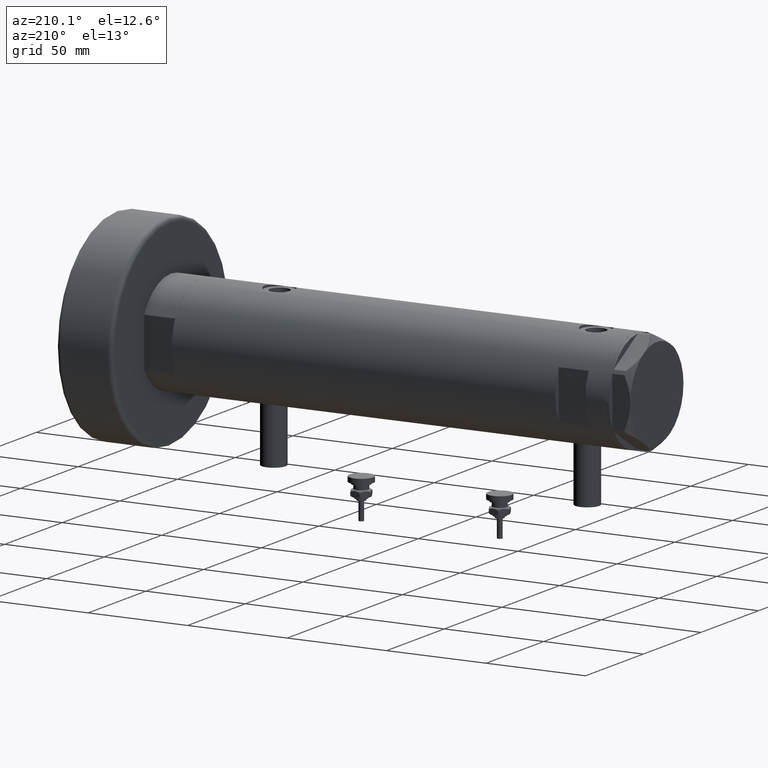
[diagram: clean part render]
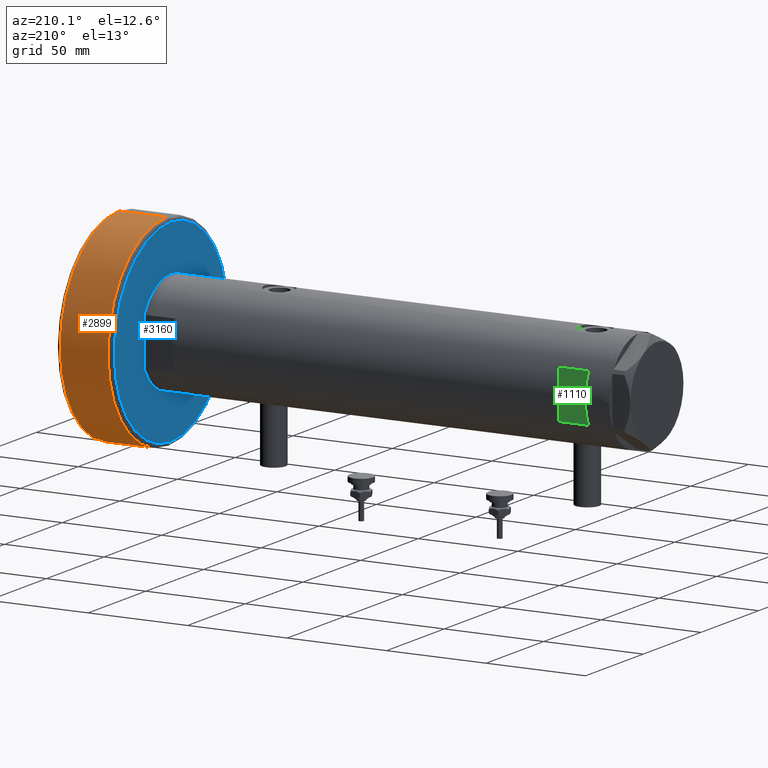
[diagram: same view with three faces highlighted in distinct colors, each labeled with its STEP entity id]
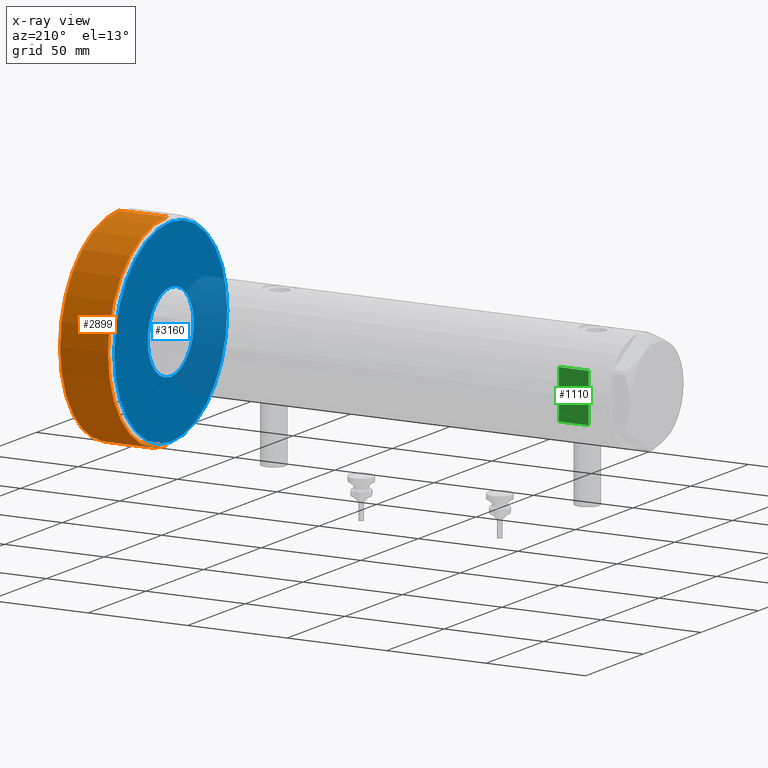
[diagram: x-ray of the same camera — body ghosted, the three highlighted faces saturated]
A machine part, auxiliary view with three faces highlighted in distinct colors.
The next image is the same camera in x-ray (body ghosted, the three faces saturated) — at least one of them is partly hidden behind the body in this view.
Their STEP definitions:

[orange] entity #2899 — the highlighted cylindrical surface (partial cylindrical patch) has radius 51 mm, axis along (-1, -0, 0).
#100 = DIRECTION ( 'NONE',  ( -0.000000000000000000, -0.000000000000000000, -1.000000000000000000 ) ) ;
#355 = DIRECTION ( 'NONE',  ( 1.000000000000000000, 0.000000000000000000, 0.000000000000000000 ) ) ;
#367 = VERTEX_POINT ( 'NONE', #2523 ) ;
#486 = ORIENTED_EDGE ( 'NONE', *, *, #1932, .T. ) ;
#859 = AXIS2_PLACEMENT_3D ( 'NONE', #1368, #4504, #870 ) ;
#870 = DIRECTION ( 'NONE',  ( 1.000000000000000000, 0.000000000000000000, 0.000000000000000000 ) ) ;
#1113 = CARTESIAN_POINT ( 'NONE',  ( 50.99999999999999289, 6.245698675651499656E-15, 1.999999999999998224 ) ) ;
#1224 = CARTESIAN_POINT ( 'NONE',  ( 0.000000000000000000, 0.000000000000000000, 28.00000000000000000 ) ) ;
#1324 = DIRECTION ( 'NONE',  ( 0.000000000000000000, 0.000000000000000000, 1.000000000000000000 ) ) ;
#1368 = CARTESIAN_POINT ( 'NONE',  ( 0.000000000000000000, 0.000000000000000000, 26.00000000000000355 ) ) ;
#1637 = LINE ( 'NONE', #2641, #2387 ) ;
#1641 = CARTESIAN_POINT ( 'NONE',  ( 50.99999999999999289, 6.245698675651499656E-15, 28.00000000000000000 ) ) ;
#1764 = ORIENTED_EDGE ( 'NONE', *, *, #2409, .T. ) ;
#1932 = EDGE_CURVE ( 'NONE', #6383, #5592, #5745, .T. ) ;
#2089 = CARTESIAN_POINT ( 'NONE',  ( -50.99999999999999289, 0.000000000000000000, 1.999999999999998224 ) ) ;
#2293 = CARTESIAN_POINT ( 'NONE',  ( 0.000000000000000000, 0.000000000000000000, 1.999999999999998224 ) ) ;
#2348 = CYLINDRICAL_SURFACE ( 'NONE', #3030, 50.99999999999999289 ) ;
#2364 = AXIS2_PLACEMENT_3D ( 'NONE', #2293, #1324, #355 ) ;
#2387 = VECTOR ( 'NONE', #6307, 1000.000000000000000 ) ;
#2409 = EDGE_CURVE ( 'NONE', #367, #6383, #6347, .T. ) ;
#2523 = CARTESIAN_POINT ( 'NONE',  ( 50.99999999999999289, 6.245698675651499656E-15, 26.00000000000000355 ) ) ;
#2641 = CARTESIAN_POINT ( 'NONE',  ( -50.99999999999999289, 0.000000000000000000, 28.00000000000000000 ) ) ;
#2899 = ADVANCED_FACE ( 'NONE', ( #5961 ), #2348, .T. ) ;
#3030 = AXIS2_PLACEMENT_3D ( 'NONE', #1224, #5901, #3313 ) ;
#3313 = DIRECTION ( 'NONE',  ( -1.000000000000000000, 0.000000000000000000, 0.000000000000000000 ) ) ;
#4004 = CIRCLE ( 'NONE', #859, 50.99999999999999289 ) ;
#4095 = CARTESIAN_POINT ( 'NONE',  ( -50.99999999999999289, 0.000000000000000000, 26.00000000000000355 ) ) ;
#4430 = EDGE_CURVE ( 'NONE', #5666, #5592, #1637, .T. ) ;
#4504 = DIRECTION ( 'NONE',  ( -0.000000000000000000, -0.000000000000000000, -1.000000000000000000 ) ) ;
#4756 = VECTOR ( 'NONE', #100, 1000.000000000000000 ) ;
#4905 = ORIENTED_EDGE ( 'NONE', *, *, #5445, .T. ) ;
#5006 = ORIENTED_EDGE ( 'NONE', *, *, #4430, .F. ) ;
#5445 = EDGE_CURVE ( 'NONE', #5666, #367, #4004, .T. ) ;
#5592 = VERTEX_POINT ( 'NONE', #2089 ) ;
#5666 = VERTEX_POINT ( 'NONE', #4095 ) ;
#5745 = CIRCLE ( 'NONE', #2364, 50.99999999999999289 ) ;
#5901 = DIRECTION ( 'NONE',  ( -0.000000000000000000, -0.000000000000000000, -1.000000000000000000 ) ) ;
#5961 = FACE_OUTER_BOUND ( 'NONE', #6652, .T. ) ;
#6307 = DIRECTION ( 'NONE',  ( -0.000000000000000000, -0.000000000000000000, -1.000000000000000000 ) ) ;
#6347 = LINE ( 'NONE', #1641, #4756 ) ;
#6383 = VERTEX_POINT ( 'NONE', #1113 ) ;
#6652 = EDGE_LOOP ( 'NONE', ( #4905, #1764, #486, #5006 ) ) ;

[blue] entity #3160 — the highlighted planar face has unit normal (1, 0, -0).
#16 = AXIS2_PLACEMENT_3D ( 'NONE', #5433, #4922, #3322 ) ;
#174 = CARTESIAN_POINT ( 'NONE',  ( -48.99999999999998579, 6.123233995736764507E-15, 0.000000000000000000 ) ) ;
#337 = CIRCLE ( 'NONE', #6626, 20.00000000000000000 ) ;
#705 = CARTESIAN_POINT ( 'NONE',  ( -20.00000000000000000, 2.449293598294706513E-15, 0.000000000000000000 ) ) ;
#803 = ORIENTED_EDGE ( 'NONE', *, *, #4135, .T. ) ;
#1177 = AXIS2_PLACEMENT_3D ( 'NONE', #4928, #5538, #1406 ) ;
#1406 = DIRECTION ( 'NONE',  ( 1.000000000000000000, 0.000000000000000000, 0.000000000000000000 ) ) ;
#1414 = EDGE_LOOP ( 'NONE', ( #4632, #803 ) ) ;
#1477 = ORIENTED_EDGE ( 'NONE', *, *, #6615, .T. ) ;
#1625 = FACE_BOUND ( 'NONE', #4547, .T. ) ;
#1656 = CARTESIAN_POINT ( 'NONE',  ( 0.000000000000000000, 0.000000000000000000, 0.000000000000000000 ) ) ;
#1701 = CARTESIAN_POINT ( 'NONE',  ( 0.000000000000000000, 0.000000000000000000, 0.000000000000000000 ) ) ;
#1966 = CARTESIAN_POINT ( 'NONE',  ( 20.00000000000000000, 0.000000000000000000, 0.000000000000000000 ) ) ;
#2274 = CIRCLE ( 'NONE', #16, 48.99999999999998579 ) ;
#2577 = EDGE_CURVE ( 'NONE', #4019, #6539, #6066, .T. ) ;
#2661 = FACE_OUTER_BOUND ( 'NONE', #1414, .T. ) ;
#3095 = CARTESIAN_POINT ( 'NONE',  ( 48.99999999999998579, 0.000000000000000000, 0.000000000000000000 ) ) ;
#3160 = ADVANCED_FACE ( 'NONE', ( #2661, #1625 ), #3709, .F. ) ;
#3200 = DIRECTION ( 'NONE',  ( 0.000000000000000000, 0.000000000000000000, 1.000000000000000000 ) ) ;
#3273 = ORIENTED_EDGE ( 'NONE', *, *, #5399, .T. ) ;
#3322 = DIRECTION ( 'NONE',  ( 1.000000000000000000, 0.000000000000000000, 0.000000000000000000 ) ) ;
#3709 = PLANE ( 'NONE',  #5096 ) ;
#3765 = DIRECTION ( 'NONE',  ( 1.000000000000000000, 0.000000000000000000, 0.000000000000000000 ) ) ;
#3785 = DIRECTION ( 'NONE',  ( -0.000000000000000000, -0.000000000000000000, -1.000000000000000000 ) ) ;
#4019 = VERTEX_POINT ( 'NONE', #3095 ) ;
#4110 = CIRCLE ( 'NONE', #1177, 20.00000000000000000 ) ;
#4135 = EDGE_CURVE ( 'NONE', #6539, #4019, #2274, .T. ) ;
#4252 = DIRECTION ( 'NONE',  ( 1.000000000000000000, 0.000000000000000000, -0.000000000000000000 ) ) ;
#4547 = EDGE_LOOP ( 'NONE', ( #1477, #3273 ) ) ;
#4632 = ORIENTED_EDGE ( 'NONE', *, *, #2577, .T. ) ;
#4767 = DIRECTION ( 'NONE',  ( 0.000000000000000000, 0.000000000000000000, 1.000000000000000000 ) ) ;
#4922 = DIRECTION ( 'NONE',  ( -0.000000000000000000, -0.000000000000000000, -1.000000000000000000 ) ) ;
#4928 = CARTESIAN_POINT ( 'NONE',  ( 0.000000000000000000, 0.000000000000000000, 0.000000000000000000 ) ) ;
#5096 = AXIS2_PLACEMENT_3D ( 'NONE', #5795, #4767, #4252 ) ;
#5324 = VERTEX_POINT ( 'NONE', #705 ) ;
#5399 = EDGE_CURVE ( 'NONE', #5324, #6243, #4110, .T. ) ;
#5433 = CARTESIAN_POINT ( 'NONE',  ( 0.000000000000000000, 0.000000000000000000, 0.000000000000000000 ) ) ;
#5538 = DIRECTION ( 'NONE',  ( 0.000000000000000000, 0.000000000000000000, 1.000000000000000000 ) ) ;
#5795 = CARTESIAN_POINT ( 'NONE',  ( 0.000000000000000000, 0.000000000000000000, 0.000000000000000000 ) ) ;
#5851 = AXIS2_PLACEMENT_3D ( 'NONE', #1701, #3785, #5877 ) ;
#5877 = DIRECTION ( 'NONE',  ( 1.000000000000000000, 0.000000000000000000, 0.000000000000000000 ) ) ;
#6066 = CIRCLE ( 'NONE', #5851, 48.99999999999998579 ) ;
#6243 = VERTEX_POINT ( 'NONE', #1966 ) ;
#6539 = VERTEX_POINT ( 'NONE', #174 ) ;
#6615 = EDGE_CURVE ( 'NONE', #6243, #5324, #337, .T. ) ;
#6626 = AXIS2_PLACEMENT_3D ( 'NONE', #1656, #3200, #3765 ) ;

[green] entity #1110 — the highlighted planar face has unit normal (0, -1, -0).
#48 = EDGE_CURVE ( 'NONE', #1385, #3265, #1090, .T. ) ;
#67 = EDGE_LOOP ( 'NONE', ( #6473, #5167, #244, #2803 ) ) ;
#193 = VECTOR ( 'NONE', #6068, 1000.000000000000000 ) ;
#244 = ORIENTED_EDGE ( 'NONE', *, *, #1143, .T. ) ;
#565 = CARTESIAN_POINT ( 'NONE',  ( -26.00000000000000355, 23.00000000000000355, 98.95000000000001705 ) ) ;
#954 = VERTEX_POINT ( 'NONE', #2960 ) ;
#1090 = LINE ( 'NONE', #3679, #3427 ) ;
#1110 = ADVANCED_FACE ( 'NONE', ( #1648 ), #5240, .F. ) ;
#1143 = EDGE_CURVE ( 'NONE', #954, #3822, #3397, .T. ) ;
#1257 = CARTESIAN_POINT ( 'NONE',  ( -26.00000000000000355, 23.00000000000000355, 83.95000000000003126 ) ) ;
#1385 = VERTEX_POINT ( 'NONE', #4672 ) ;
#1485 = VECTOR ( 'NONE', #5247, 1000.000000000000000 ) ;
#1581 = AXIS2_PLACEMENT_3D ( 'NONE', #565, #5300, #2650 ) ;
#1648 = FACE_OUTER_BOUND ( 'NONE', #67, .T. ) ;
#1891 = EDGE_CURVE ( 'NONE', #954, #3265, #5934, .T. ) ;
#1895 = CARTESIAN_POINT ( 'NONE',  ( -12.12435565298214080, 23.00000000000000355, 98.95000000000001705 ) ) ;
#2067 = EDGE_CURVE ( 'NONE', #3822, #1385, #3173, .T. ) ;
#2650 = DIRECTION ( 'NONE',  ( 0.000000000000000000, 0.000000000000000000, -1.000000000000000000 ) ) ;
#2794 = VECTOR ( 'NONE', #3362, 1000.000000000000000 ) ;
#2803 = ORIENTED_EDGE ( 'NONE', *, *, #2067, .T. ) ;
#2818 = CARTESIAN_POINT ( 'NONE',  ( -12.12435565298214080, 23.00000000000000355, -108.9500000000000028 ) ) ;
#2960 = CARTESIAN_POINT ( 'NONE',  ( -12.12435565298214080, 23.00000000000000355, 83.95000000000003126 ) ) ;
#3173 = LINE ( 'NONE', #4729, #1485 ) ;
#3265 = VERTEX_POINT ( 'NONE', #3802 ) ;
#3362 = DIRECTION ( 'NONE',  ( 0.000000000000000000, 0.000000000000000000, 1.000000000000000000 ) ) ;
#3397 = LINE ( 'NONE', #2818, #2794 ) ;
#3427 = VECTOR ( 'NONE', #4316, 1000.000000000000000 ) ;
#3679 = CARTESIAN_POINT ( 'NONE',  ( 12.12435565298214080, 23.00000000000000355, -108.9500000000000028 ) ) ;
#3802 = CARTESIAN_POINT ( 'NONE',  ( 12.12435565298213724, 23.00000000000000355, 83.95000000000003126 ) ) ;
#3822 = VERTEX_POINT ( 'NONE', #1895 ) ;
#4316 = DIRECTION ( 'NONE',  ( -0.000000000000000000, -0.000000000000000000, -1.000000000000000000 ) ) ;
#4672 = CARTESIAN_POINT ( 'NONE',  ( 12.12435565298214080, 23.00000000000000355, 98.95000000000001705 ) ) ;
#4729 = CARTESIAN_POINT ( 'NONE',  ( -26.00000000000000355, 23.00000000000000355, 98.95000000000001705 ) ) ;
#5167 = ORIENTED_EDGE ( 'NONE', *, *, #1891, .F. ) ;
#5240 = PLANE ( 'NONE',  #1581 ) ;
#5247 = DIRECTION ( 'NONE',  ( 1.000000000000000000, -0.000000000000000000, -0.000000000000000000 ) ) ;
#5300 = DIRECTION ( 'NONE',  ( 0.000000000000000000, -1.000000000000000000, -0.000000000000000000 ) ) ;
#5934 = LINE ( 'NONE', #1257, #193 ) ;
#6068 = DIRECTION ( 'NONE',  ( 1.000000000000000000, -0.000000000000000000, -0.000000000000000000 ) ) ;
#6473 = ORIENTED_EDGE ( 'NONE', *, *, #48, .T. ) ;